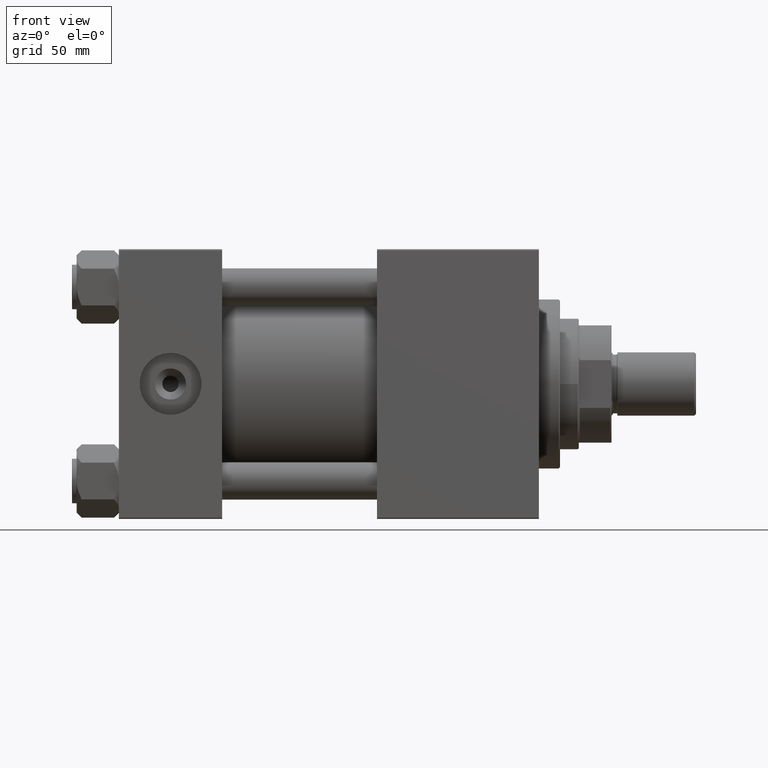
[diagram: clean part render]
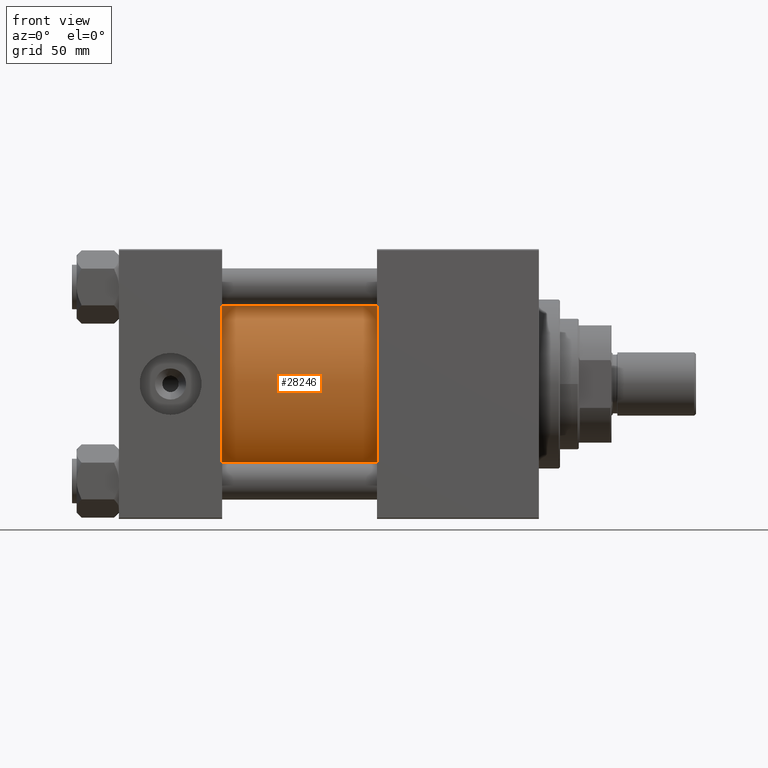
[diagram: same view with one face highlighted and labeled with its STEP entity id]
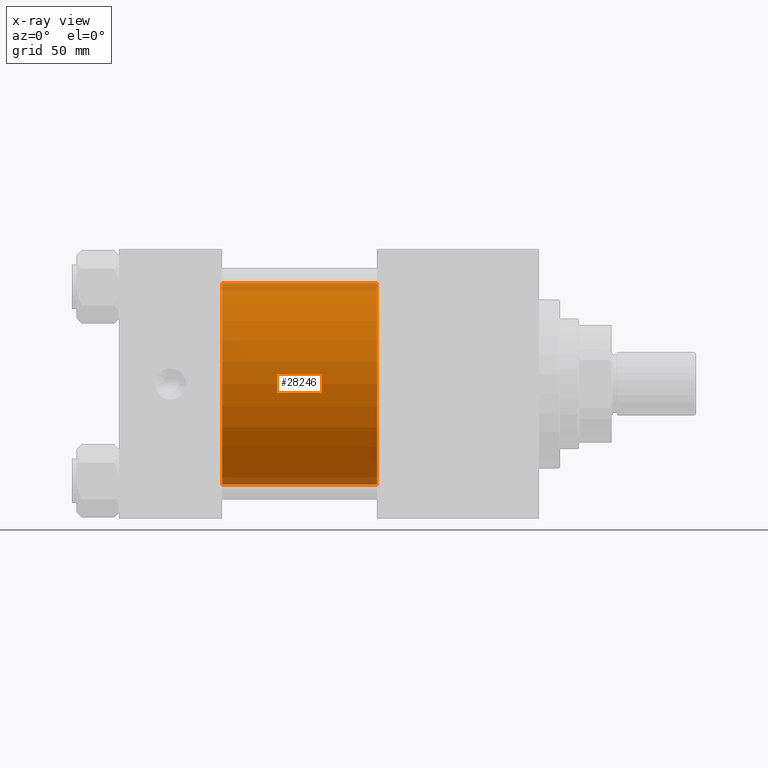
[diagram: x-ray of the same camera — body ghosted, the highlighted face saturated]
A machine part, front view. The second image highlights one B-rep face of the part: STEP entity #28246.
The next image is the same camera in x-ray: the body ghosted, the highlighted face saturated — about 7% of this face is hidden behind the body in this view.
In plain terms, the highlighted cylindrical surface (partial cylindrical patch) has radius 43 mm, axis along (-1, -0, -0).
Its self-contained STEP definition (entity closure, byte-faithful):
#178 = FACE_OUTER_BOUND ( 'NONE', #41267, .T. ) ;
#182 = ORIENTED_EDGE ( 'NONE', *, *, #26395, .F. ) ;
#1193 = VERTEX_POINT ( 'NONE', #5696 ) ;
#2514 = DIRECTION ( 'NONE',  ( 1.000000000000000000, 0.000000000000000000, 0.000000000000000000 ) ) ;
#3981 = ORIENTED_EDGE ( 'NONE', *, *, #14643, .F. ) ;
#5696 = CARTESIAN_POINT ( 'NONE',  ( 110.0000000000000000, -2.602085213965210642E-15, 43.00000000000000000 ) ) ;
#6946 = ORIENTED_EDGE ( 'NONE', *, *, #19145, .T. ) ;
#11588 = CARTESIAN_POINT ( 'NONE',  ( 110.0000000000000000, -2.602085213965210642E-15, 0.000000000000000000 ) ) ;
#11732 = CIRCLE ( 'NONE', #34908, 43.00000000000000000 ) ;
#12097 = DIRECTION ( 'NONE',  ( 0.000000000000000000, 0.000000000000000000, 1.000000000000000000 ) ) ;
#14182 = AXIS2_PLACEMENT_3D ( 'NONE', #11588, #31548, #12097 ) ;
#14643 = EDGE_CURVE ( 'NONE', #1193, #20855, #33719, .T. ) ;
#15742 = CYLINDRICAL_SURFACE ( 'NONE', #14182, 43.00000000000000000 ) ;
#16424 = DIRECTION ( 'NONE',  ( -1.000000000000000000, -0.000000000000000000, -0.000000000000000000 ) ) ;
#17811 = DIRECTION ( 'NONE',  ( 0.000000000000000000, 0.000000000000000000, -1.000000000000000000 ) ) ;
#19145 = EDGE_CURVE ( 'NONE', #1193, #48523, #19995, .T. ) ;
#19995 = LINE ( 'NONE', #31139, #27163 ) ;
#20855 = VERTEX_POINT ( 'NONE', #30741 ) ;
#24756 = CARTESIAN_POINT ( 'NONE',  ( 44.00000000000000000, 2.663896022368408223E-15, -43.00000000000000000 ) ) ;
#26395 = EDGE_CURVE ( 'NONE', #20855, #31508, #35863, .T. ) ;
#27163 = VECTOR ( 'NONE', #38921, 1000.000000000000000 ) ;
#27415 = VECTOR ( 'NONE', #16424, 1000.000000000000000 ) ;
#28246 = ADVANCED_FACE ( 'NONE', ( #178 ), #15742, .T. ) ;
#28720 = DIRECTION ( 'NONE',  ( 0.000000000000000000, 0.000000000000000000, 1.000000000000000000 ) ) ;
#29484 = CARTESIAN_POINT ( 'NONE',  ( 110.0000000000000000, -2.602085213965210642E-15, 0.000000000000000000 ) ) ;
#30741 = CARTESIAN_POINT ( 'NONE',  ( 110.0000000000000000, 2.663896022368408223E-15, -43.00000000000000000 ) ) ;
#31139 = CARTESIAN_POINT ( 'NONE',  ( 110.0000000000000000, -2.602085213965210642E-15, 43.00000000000000000 ) ) ;
#31508 = VERTEX_POINT ( 'NONE', #24756 ) ;
#31548 = DIRECTION ( 'NONE',  ( -1.000000000000000000, -0.000000000000000000, -0.000000000000000000 ) ) ;
#32125 = EDGE_CURVE ( 'NONE', #48523, #31508, #11732, .T. ) ;
#32356 = DIRECTION ( 'NONE',  ( 1.000000000000000000, -0.000000000000000000, 0.000000000000000000 ) ) ;
#32488 = CARTESIAN_POINT ( 'NONE',  ( 110.0000000000000000, 2.663896022368408223E-15, -43.00000000000000000 ) ) ;
#33719 = CIRCLE ( 'NONE', #47808, 43.00000000000000000 ) ;
#34828 = CARTESIAN_POINT ( 'NONE',  ( 44.00000000000000000, -2.602085213965210642E-15, 43.00000000000000000 ) ) ;
#34908 = AXIS2_PLACEMENT_3D ( 'NONE', #40620, #32356, #28720 ) ;
#35863 = LINE ( 'NONE', #32488, #27415 ) ;
#38921 = DIRECTION ( 'NONE',  ( -1.000000000000000000, -0.000000000000000000, -0.000000000000000000 ) ) ;
#40620 = CARTESIAN_POINT ( 'NONE',  ( 44.00000000000000000, -2.602085213965210642E-15, 0.000000000000000000 ) ) ;
#41267 = EDGE_LOOP ( 'NONE', ( #182, #3981, #6946, #42998 ) ) ;
#42998 = ORIENTED_EDGE ( 'NONE', *, *, #32125, .T. ) ;
#47808 = AXIS2_PLACEMENT_3D ( 'NONE', #29484, #2514, #17811 ) ;
#48523 = VERTEX_POINT ( 'NONE', #34828 ) ;